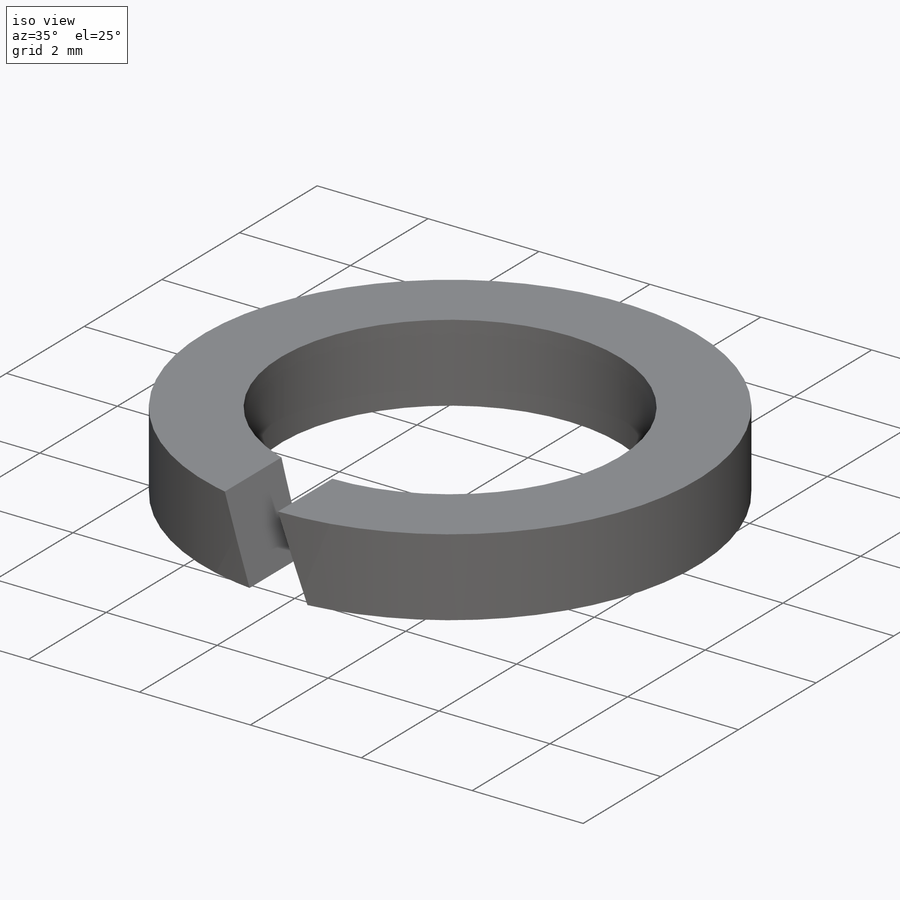
[diagram: iso view]
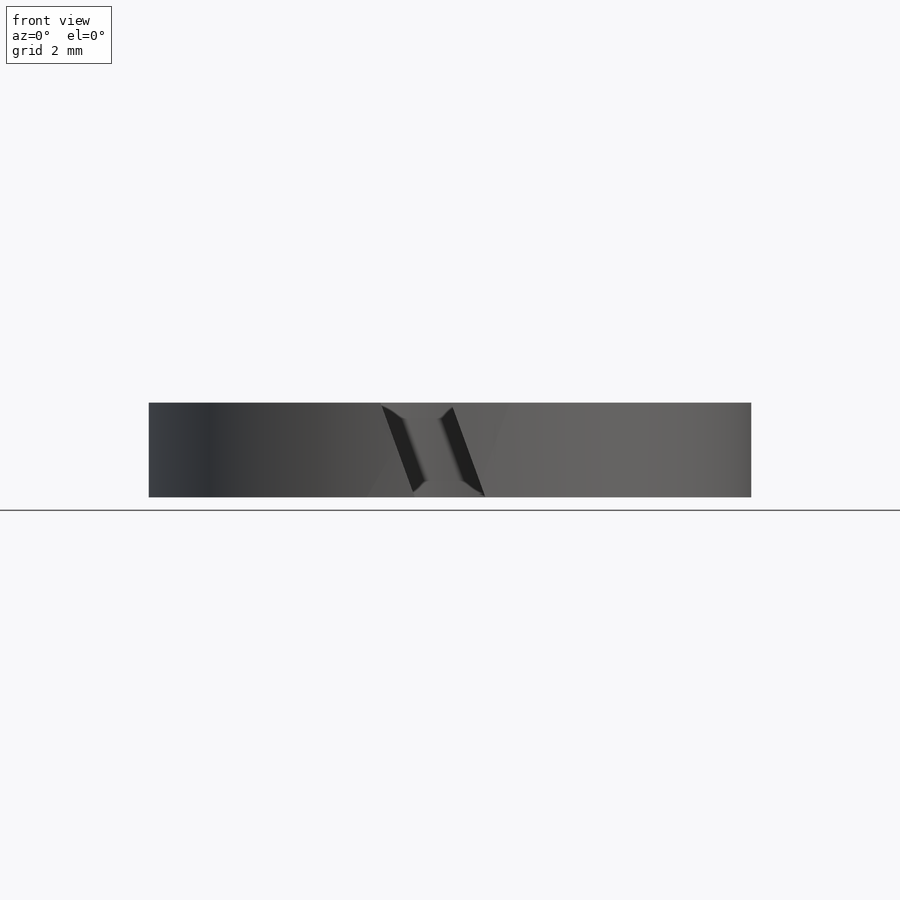
[diagram: front view]
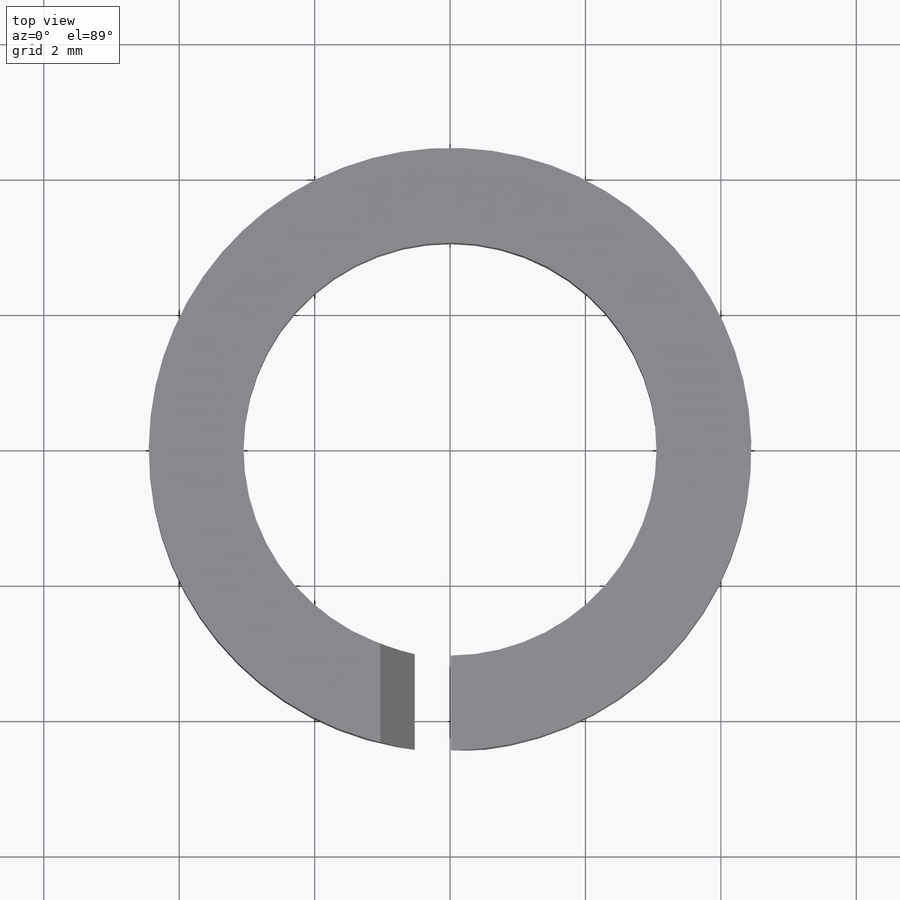
[diagram: top view]
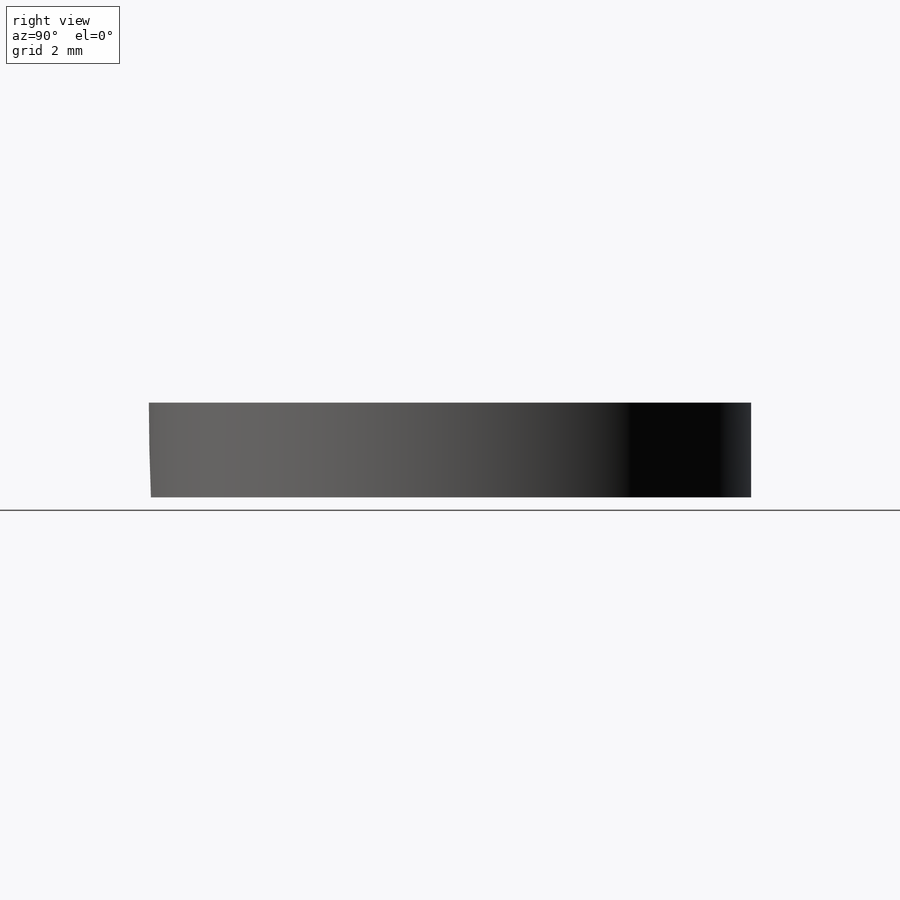
[diagram: right view]
SOLIDWORKS PART (.sldprt)
format: sldprt  version: not decoded by parser v0  size: 963,072 bytes
history: native  units: mm
features: cut_extrude x4, plane x3, sketch x2, material x1, revolve x1 (+11 scaffold rows collapsed; 1 parser-record rows omitted)
feature tree (23):
  scaffold x11  (default folders/planes/origin — collapsed)
  material  "Материал <не указан>"
  plane  "Спереди"
  plane  "Сверху"
  plane  "Справа"
  parser-record x1  (decoder bookkeeping rows leaked as tree rows — omitted from the tree; the rows remain in map.json)
  sketch  "Ske"  dims[c1.S=1.0mm c1.H=1.0mm c1.Insid_Dia=2.1mm c2.Insid_Dia=4.1mm]
  revolve  "Base"  Angle=360deg
  sketch  "Ske4"  dims[c1.D1=2.1mm c2.D1=110.0deg c2.D2=0.7mm]
  cut_extrude  "Cut"  [1 undecoded]
  cut_extrude  "ConfigurationName"  Depth=0 CopiedFlag=0
  cut_extrude  "PartNumberID"  [1 undecoded]
  cut_extrude  "ConfigurationName"  Depth=0 CopiedFlag=0
decode coverage: 5 of 7 modeling features carry decoded parameters
note: 2 parameter values undecoded
note: suppression state not decoded; provenance and decode notes live in map.json
